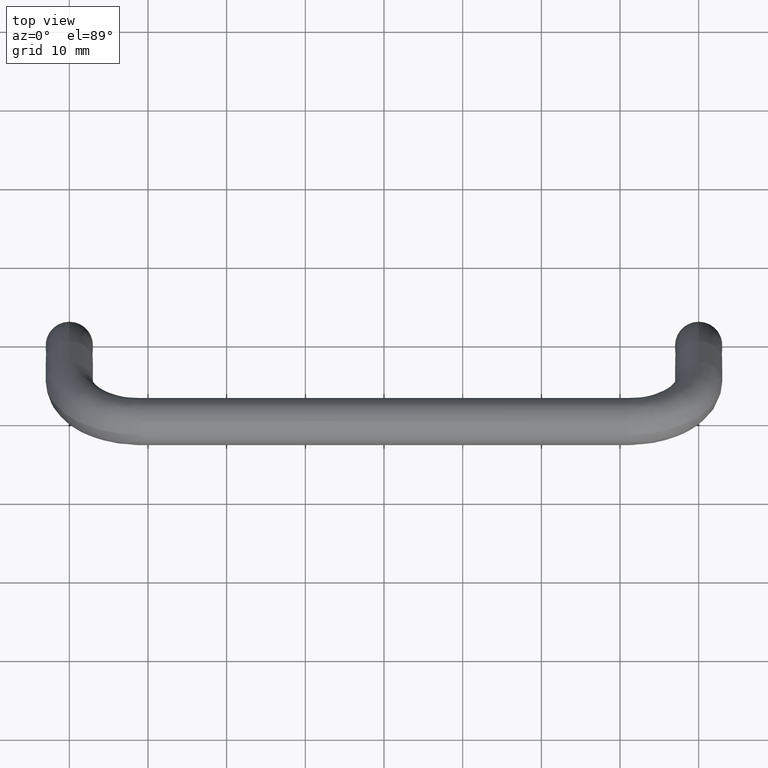
[diagram: clean part render]
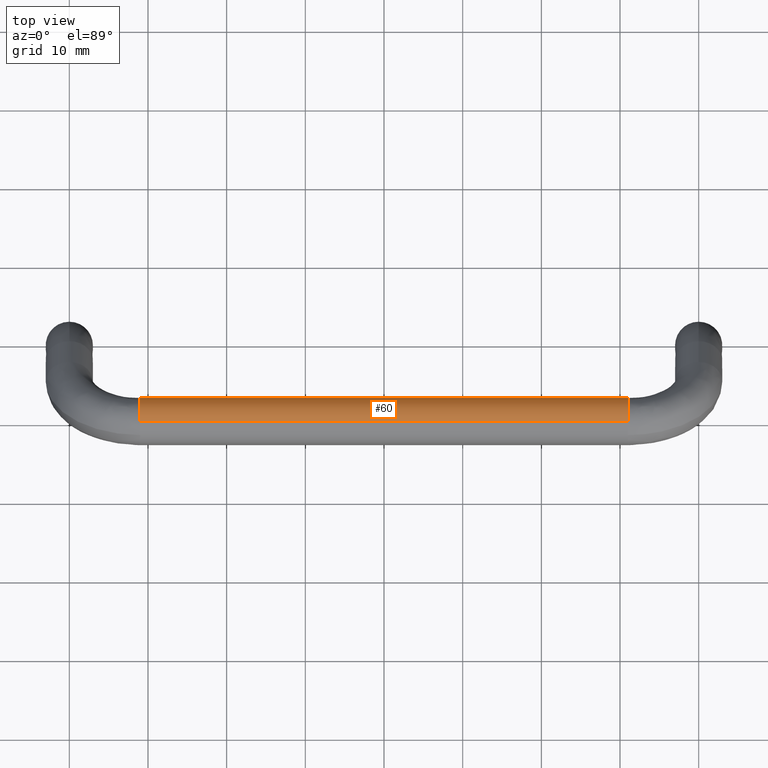
[diagram: same view with one face highlighted and labeled with its STEP entity id]
A machine part, top view. The second image highlights one B-rep face of the part: STEP entity #60.
In plain terms, the highlighted cylindrical surface (edge-blend (fillet) strip) has radius 3 mm, axis along (1, -0, -0).
Its self-contained STEP definition (entity closure, byte-faithful):
#60=ADVANCED_FACE('',(#269),#268,.T.);
#268=CYLINDRICAL_SURFACE('',#581,3.00000000000E+00);
#269=FACE_OUTER_BOUND('',#582,.T.);
#578=CARTESIAN_POINT('',(0.00000000000E+00,5.29090660173E-14,3.00000000000E+00));
#579=DIRECTION('',(1.00000000000E+00,-0.00000000000E+00,-0.00000000000E+00));
#580=DIRECTION('',(0.00000000000E+00,0.00000000000E+00,-1.00000000000E+00));
#581=AXIS2_PLACEMENT_3D('',#578,#579,#580);
#582=EDGE_LOOP('',(#703,#704,#705,#706,#707,#708));
#703=ORIENTED_EDGE('',*,*,#767,.F.);
#704=ORIENTED_EDGE('',*,*,#760,.F.);
#705=ORIENTED_EDGE('',*,*,#791,.F.);
#706=ORIENTED_EDGE('',*,*,#780,.T.);
#707=ORIENTED_EDGE('',*,*,#784,.T.);
#708=ORIENTED_EDGE('',*,*,#792,.T.);
#760=EDGE_CURVE('',#967,#974,#975,.T.);
#767=EDGE_CURVE('',#974,#1021,#1022,.T.);
#780=EDGE_CURVE('',#1110,#1103,#1111,.T.);
#784=EDGE_CURVE('',#1103,#1130,#1137,.T.);
#791=EDGE_CURVE('',#1110,#967,#1180,.T.);
#792=EDGE_CURVE('',#1130,#1021,#1186,.T.);
#967=VERTEX_POINT('',#1326);
#974=VERTEX_POINT('',#1331);
#975=CIRCLE('',#1335,3.00000000000E+00);
#1021=VERTEX_POINT('',#1364);
#1022=CIRCLE('',#1368,3.00000000000E+00);
#1103=VERTEX_POINT('',#1420);
#1110=VERTEX_POINT('',#1424);
#1111=CIRCLE('',#1428,3.00000000000E+00);
#1130=VERTEX_POINT('',#1439);
#1137=CIRCLE('',#1447,3.00000000000E+00);
#1180=(BOUNDED_CURVE() B_SPLINE_CURVE(1,(#1465,#1466),.UNSPECIFIED.,.F.,.F.) B_SPLINE_CURVE_WITH_KNOTS((2,2),(8.33333332085E-02,9.16666666563E-01),.UNSPECIFIED.) CURVE() GEOMETRIC_REPRESENTATION_ITEM() RATIONAL_B_SPLINE_CURVE((1.00000000000E+00,1.00000000000E+00)) REPRESENTATION_ITEM('') );
#1186=(BOUNDED_CURVE() B_SPLINE_CURVE(1,(#1467,#1468),.UNSPECIFIED.,.F.,.F.) B_SPLINE_CURVE_WITH_KNOTS((2,2),(8.33333333333E-02,9.16666666667E-01),.UNSPECIFIED.) CURVE() GEOMETRIC_REPRESENTATION_ITEM() RATIONAL_B_SPLINE_CURVE((7.50000000000E-01,7.50000000000E-01)) REPRESENTATION_ITEM('') );
#1326=CARTESIAN_POINT('',(3.10000000001E+01,5.17363929475E-14,4.44089209850E-16));
#1331=CARTESIAN_POINT('',(3.10000000001E+01,1.74632373576E+00,5.60665375574E-01));
#1332=CARTESIAN_POINT('',(3.10000000001E+01,5.20417042793E-14,3.00000000000E+00));
#1333=DIRECTION('',(1.00000000000E+00,-2.06806279116E-15,2.88875246003E-15));
#1334=DIRECTION('',(2.88875246003E-15,3.88578058619E-16,-1.00000000000E+00));
#1335=AXIS2_PLACEMENT_3D('',#1332,#1333,#1334);
#1364=CARTESIAN_POINT('',(3.10000000001E+01,1.50800148035E-04,5.99999999621E+00));
#1365=CARTESIAN_POINT('',(3.10000000001E+01,5.20417042793E-14,3.00000000000E+00));
#1366=DIRECTION('',(1.00000000000E+00,-2.06806279116E-15,2.88875246003E-15));
#1367=DIRECTION('',(2.88875246003E-15,3.88578058619E-16,-1.00000000000E+00));
#1368=AXIS2_PLACEMENT_3D('',#1365,#1366,#1367);
#1420=CARTESIAN_POINT('',(-3.10000000001E+01,1.74632373899E+00,5.60665377888E-01));
#1424=CARTESIAN_POINT('',(-3.10000000001E+01,-1.48404366160E-07,3.64982196328E-15));
#1425=CARTESIAN_POINT('',(-3.10000000001E+01,5.20417042793E-14,3.00000000000E+00));
#1426=DIRECTION('',(1.00000000000E+00,2.01959252071E-15,-2.36847578587E-15));
#1427=DIRECTION('',(3.10145578270E-15,-5.82107912997E-01,8.13111540704E-01));
#1428=AXIS2_PLACEMENT_3D('',#1425,#1426,#1427);
#1439=CARTESIAN_POINT('',(-3.10000000001E+01,1.50948537406E-04,5.99999999620E+00));
#1444=CARTESIAN_POINT('',(-3.10000000001E+01,5.20417042793E-14,3.00000000000E+00));
#1445=DIRECTION('',(1.00000000000E+00,2.01959252071E-15,-2.36847578587E-15));
#1446=DIRECTION('',(3.10145578270E-15,-5.82107912997E-01,8.13111540704E-01));
#1447=AXIS2_PLACEMENT_3D('',#1444,#1445,#1446);
#1465=CARTESIAN_POINT('',(-3.10000000094E+01,5.29090660173E-14,0.00000000000E+00));
#1466=CARTESIAN_POINT('',(3.09999999924E+01,5.29090660173E-14,0.00000000000E+00));
#1467=CARTESIAN_POINT('',(-3.10000000001E+01,5.26985862355E-14,6.00000000000E+00));
#1468=CARTESIAN_POINT('',(3.10000000001E+01,5.26985862355E-14,6.00000000000E+00));